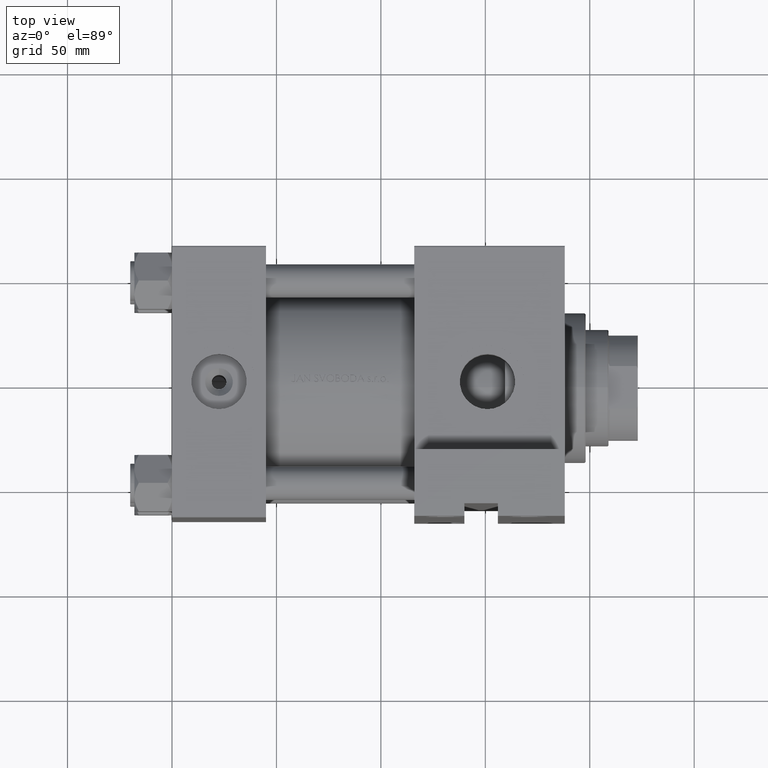
[diagram: clean part render]
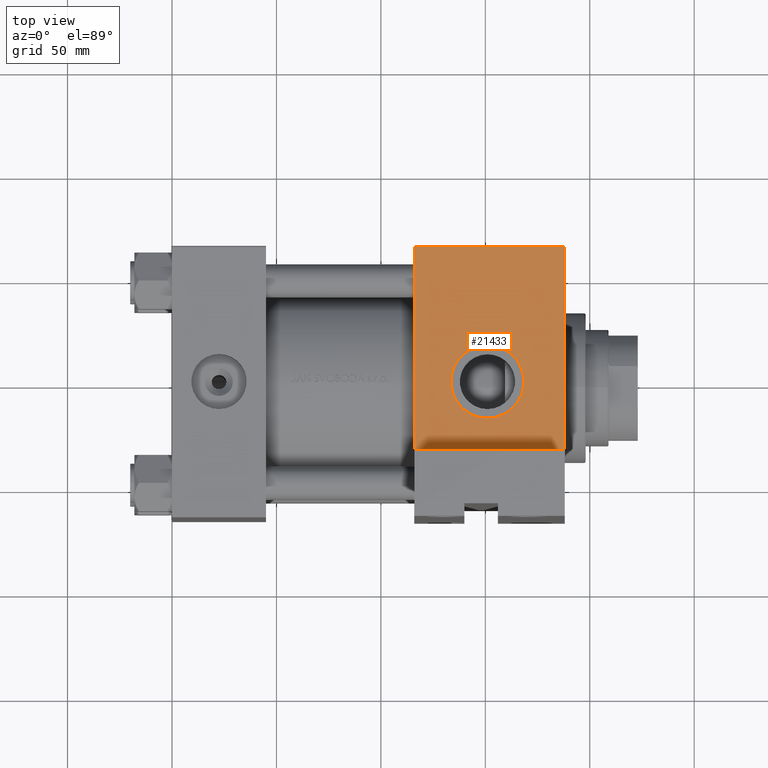
[diagram: same view with one face highlighted and labeled with its STEP entity id]
A machine part, top view. The second image highlights one B-rep face of the part: STEP entity #21433.
In plain terms, the highlighted planar face has unit normal (0, 0, -1).
Its self-contained STEP definition (entity closure, byte-faithful):
#266 = DIRECTION ( 'NONE',  ( 0.000000000000000000, 0.000000000000000000, -1.000000000000000000 ) ) ;
#309 = CARTESIAN_POINT ( 'NONE',  ( 188.0000000000000000, -64.99999999999998579, 64.50000000000002842 ) ) ;
#1018 = CARTESIAN_POINT ( 'NONE',  ( 188.0000000000000000, -64.99999999999998579, -33.00000000000000000 ) ) ;
#1367 = EDGE_CURVE ( 'NONE', #45213, #9937, #33479, .T. ) ;
#2863 = ORIENTED_EDGE ( 'NONE', *, *, #1367, .F. ) ;
#3997 = VECTOR ( 'NONE', #38698, 1000.000000000000000 ) ;
#5311 = EDGE_CURVE ( 'NONE', #29726, #32612, #35281, .T. ) ;
#7123 = DIRECTION ( 'NONE',  ( -1.000000000000000000, 0.000000000000000000, 0.000000000000000000 ) ) ;
#7503 = EDGE_LOOP ( 'NONE', ( #9197, #2863 ) ) ;
#8810 = EDGE_CURVE ( 'NONE', #14848, #40183, #22997, .T. ) ;
#9197 = ORIENTED_EDGE ( 'NONE', *, *, #21878, .F. ) ;
#9937 = VERTEX_POINT ( 'NONE', #33263 ) ;
#10111 = AXIS2_PLACEMENT_3D ( 'NONE', #33927, #26620, #266 ) ;
#11278 = CARTESIAN_POINT ( 'NONE',  ( 188.0000000000000000, -64.99999999999998579, 64.50000000000002842 ) ) ;
#11433 = CIRCLE ( 'NONE', #47260, 17.49999999999999289 ) ;
#12476 = EDGE_CURVE ( 'NONE', #40183, #32612, #22774, .T. ) ;
#13419 = ORIENTED_EDGE ( 'NONE', *, *, #5311, .F. ) ;
#13880 = DIRECTION ( 'NONE',  ( -0.000000000000000000, 1.000000000000000000, 0.000000000000000000 ) ) ;
#14848 = VERTEX_POINT ( 'NONE', #18904 ) ;
#16228 = VECTOR ( 'NONE', #7123, 1000.000000000000000 ) ;
#16484 = CARTESIAN_POINT ( 'NONE',  ( 188.0000000000000000, -64.99999999999998579, 65.00000000000000000 ) ) ;
#16864 = DIRECTION ( 'NONE',  ( 0.000000000000000000, 0.000000000000000000, -1.000000000000000000 ) ) ;
#18255 = FACE_BOUND ( 'NONE', #7503, .T. ) ;
#18904 = CARTESIAN_POINT ( 'NONE',  ( 115.9999999999999858, -64.99999999999998579, 64.50000000000002842 ) ) ;
#19605 = VECTOR ( 'NONE', #16864, 1000.000000000000000 ) ;
#21433 = ADVANCED_FACE ( 'NONE', ( #18255, #40234 ), #33150, .F. ) ;
#21699 = CARTESIAN_POINT ( 'NONE',  ( 115.9999999999999858, -64.99999999999998579, -33.00000000000000000 ) ) ;
#21878 = EDGE_CURVE ( 'NONE', #9937, #45213, #11433, .T. ) ;
#22774 = LINE ( 'NONE', #29852, #33835 ) ;
#22997 = LINE ( 'NONE', #45441, #19605 ) ;
#23594 = ORIENTED_EDGE ( 'NONE', *, *, #34699, .T. ) ;
#25724 = ORIENTED_EDGE ( 'NONE', *, *, #12476, .T. ) ;
#26158 = LINE ( 'NONE', #11278, #16228 ) ;
#26620 = DIRECTION ( 'NONE',  ( 0.000000000000000000, -1.000000000000000000, -8.673617379884036705E-17 ) ) ;
#27703 = CARTESIAN_POINT ( 'NONE',  ( 151.0000000000000000, -64.99999999999998579, 0.000000000000000000 ) ) ;
#29015 = DIRECTION ( 'NONE',  ( 0.000000000000000000, -0.000000000000000000, 1.000000000000000000 ) ) ;
#29490 = CARTESIAN_POINT ( 'NONE',  ( 188.0000000000000000, -64.99999999999998579, 65.00000000000000000 ) ) ;
#29726 = VERTEX_POINT ( 'NONE', #309 ) ;
#29852 = CARTESIAN_POINT ( 'NONE',  ( 115.9999999999999858, -64.99999999999998579, -33.00000000000000000 ) ) ;
#30095 = AXIS2_PLACEMENT_3D ( 'NONE', #29490, #13880, #29015 ) ;
#31391 = ORIENTED_EDGE ( 'NONE', *, *, #8810, .T. ) ;
#31585 = DIRECTION ( 'NONE',  ( 0.000000000000000000, 0.000000000000000000, -1.000000000000000000 ) ) ;
#32612 = VERTEX_POINT ( 'NONE', #1018 ) ;
#33150 = PLANE ( 'NONE',  #30095 ) ;
#33263 = CARTESIAN_POINT ( 'NONE',  ( 151.0000000000000000, -64.99999999999998579, -17.49999999999999289 ) ) ;
#33479 = CIRCLE ( 'NONE', #10111, 17.49999999999999289 ) ;
#33835 = VECTOR ( 'NONE', #44742, 1000.000000000000000 ) ;
#33927 = CARTESIAN_POINT ( 'NONE',  ( 151.0000000000000000, -64.99999999999998579, 0.000000000000000000 ) ) ;
#34699 = EDGE_CURVE ( 'NONE', #29726, #14848, #26158, .T. ) ;
#35281 = LINE ( 'NONE', #16484, #3997 ) ;
#38698 = DIRECTION ( 'NONE',  ( 0.000000000000000000, 0.000000000000000000, -1.000000000000000000 ) ) ;
#40183 = VERTEX_POINT ( 'NONE', #21699 ) ;
#40234 = FACE_OUTER_BOUND ( 'NONE', #47423, .T. ) ;
#42571 = DIRECTION ( 'NONE',  ( 0.000000000000000000, -1.000000000000000000, -8.673617379884036705E-17 ) ) ;
#44742 = DIRECTION ( 'NONE',  ( 1.000000000000000000, 0.000000000000000000, 0.000000000000000000 ) ) ;
#45213 = VERTEX_POINT ( 'NONE', #47792 ) ;
#45441 = CARTESIAN_POINT ( 'NONE',  ( 115.9999999999999858, -64.99999999999998579, 65.00000000000000000 ) ) ;
#47260 = AXIS2_PLACEMENT_3D ( 'NONE', #27703, #42571, #31585 ) ;
#47423 = EDGE_LOOP ( 'NONE', ( #13419, #23594, #31391, #25724 ) ) ;
#47792 = CARTESIAN_POINT ( 'NONE',  ( 151.0000000000000000, -64.99999999999998579, 17.49999999999999289 ) ) ;